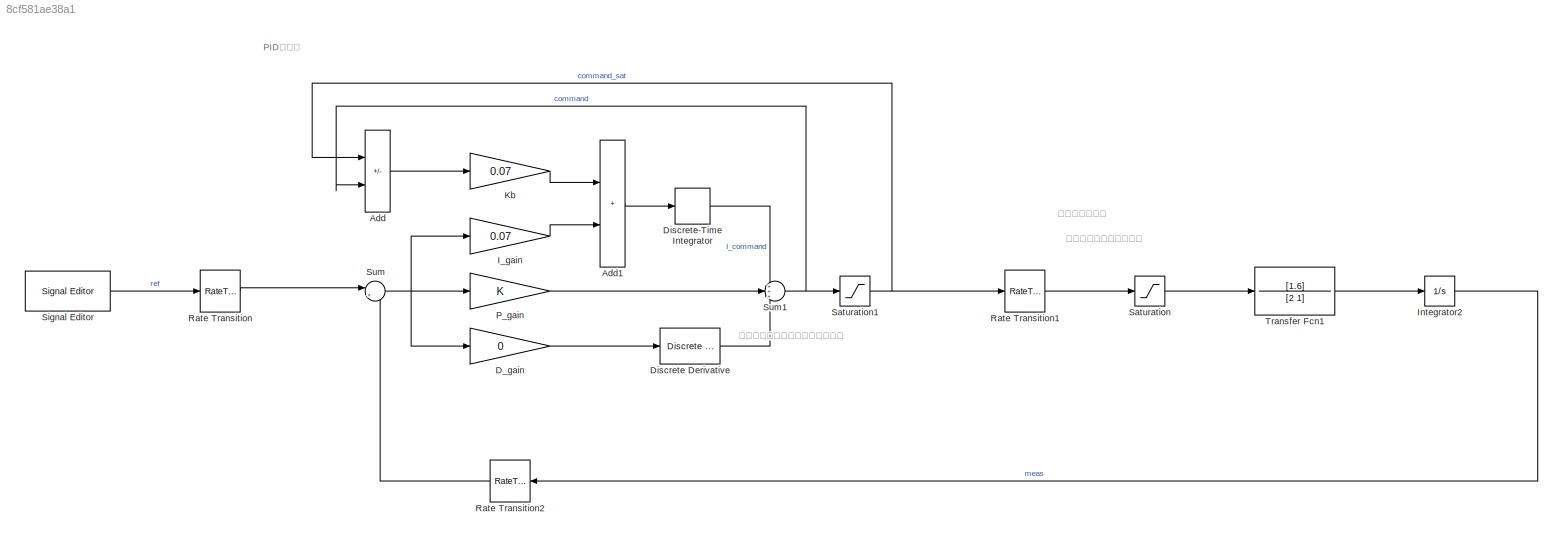
MODEL slx_8cf581ae38a1
KIND model
CONFIG AbsTol = auto
CONFIG EnableMultiTasking = off
CONFIG FixedStep = auto
CONFIG MaxStep = auto
CONFIG MinStep = auto
CONFIG RelTol = 1e-3
CONFIG SampleTimeConstraint = Unconstrained
CONFIG SolverName = VariableStepAuto
CONFIG StartTime = 0.0
CONFIG StopTime = 60
BLOCK [Sum] Add
  IconShape = rectangular
  Inputs = +-
BLOCK [Sum] Add1
  IconShape = rectangular
BLOCK [Gain] D_gain
  Gain = 0
BLOCK [Reference] Discrete Derivative  REF=simulink/Discrete/Discrete Derivative
  SourceBlock = simulink/Discrete/Discrete Derivative
  SourceType = Discrete Derivative
BLOCK [DiscreteIntegrator] Discrete-Time Integrator
  ICPrevOutput = DiscIntNeverNeededParam
  ICPrevScaledInput = DiscIntNeverNeededParam
  InitialConditionSetting = Auto
  SampleTime = -1
BLOCK [Gain] I_gain
  Gain = 0.07
BLOCK [Integrator] Integrator2
BLOCK [Gain] Kb
  Gain = 0.07
BLOCK [Gain] P_gain
BLOCK [RateTransition] Rate Transition
  OutPortSampleTime = TimeStep
BLOCK [RateTransition] Rate Transition1
BLOCK [RateTransition] Rate Transition2
  OutPortSampleTime = TimeStep
BLOCK [Saturate] Saturation
  LowerLimit = -0.2
  UpperLimit = 0.2
BLOCK [Saturate] Saturation1
  LowerLimit = lower_limit
  UpperLimit = upper_limit
BLOCK [Reference] Signal Editor  REF=SignalEditorBlockLib/Signal Editor
  SourceBlock = SignalEditorBlockLib/Signal Editor
  SourceType = SignalEditor
  UserDataPersistent = on
BLOCK [Sum] Sum
  Inputs = |+-
BLOCK [Sum] Sum1
  Inputs = +++
BLOCK [TransferFcn] Transfer Fcn1
  Denominator = [2 1]
  Numerator = [1.6]
ANNOTATION (root): PID制御器
ANNOTATION (root): アクチュエータの上下限
ANNOTATION (root): コントローラ内で設定した上下限
ANNOTATION (root): プラントモデル
LINE Add1:1 -> Discrete-Time Integrator:1
LINE Add:1 -> Kb:1
LINE D_gain:1 -> Discrete Derivative:1
LINE Discrete Derivative:1 -> Sum1:3
LINE Discrete-Time Integrator:1 -> Sum1:1
LINE I_gain:1 -> Add1:2
LINE Integrator2:1 -> Rate Transition2:1
LINE Kb:1 -> Add1:1
LINE P_gain:1 -> Sum1:2
LINE Rate Transition1:1 -> Saturation:1
LINE Rate Transition2:1 -> Sum:2
LINE Rate Transition:1 -> Sum:1
NET Saturation1:1 -> Add:1, Rate Transition1:1
LINE Saturation:1 -> Transfer Fcn1:1
LINE Signal Editor:1 -> Rate Transition:1
NET Sum1:1 -> Add:2, Saturation1:1
NET Sum:1 -> D_gain:1, I_gain:1, P_gain:1
LINE Transfer Fcn1:1 -> Integrator2:1
note: NET lines group one-source signal fan-out (src -> all destinations, sorted); 1:1 wires keep LINE
